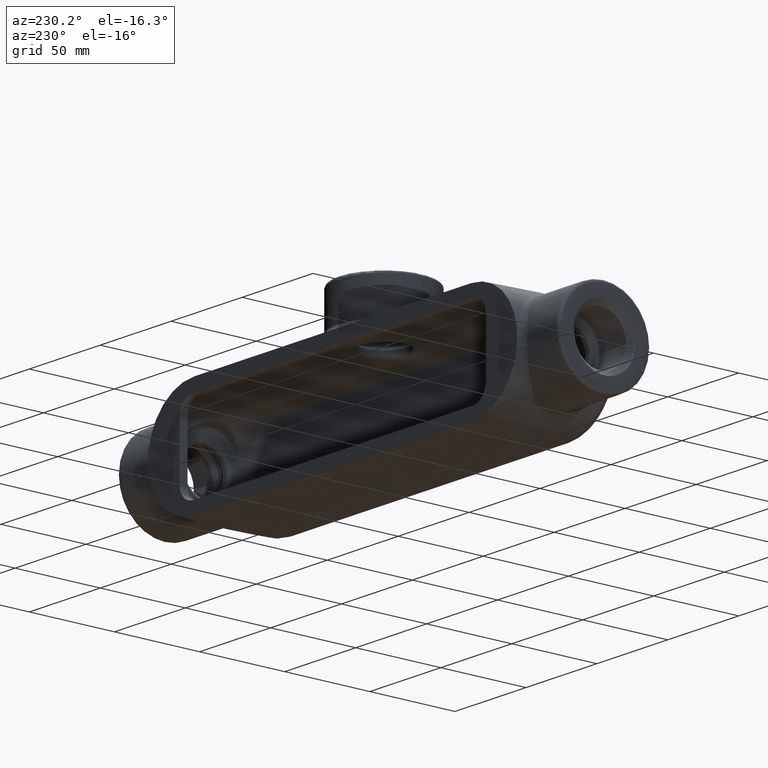
[diagram: clean part render]
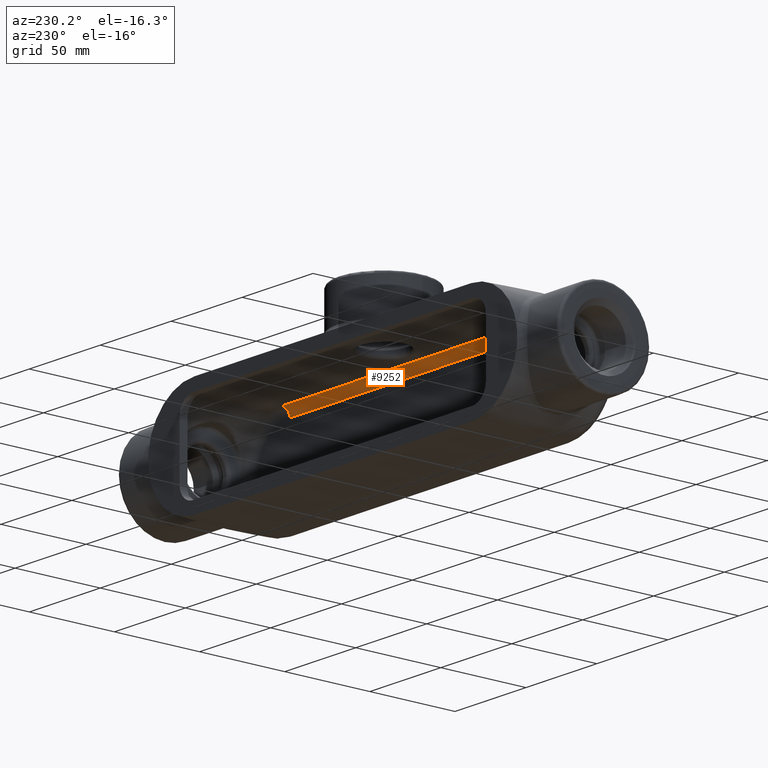
[diagram: same view with one face highlighted and labeled with its STEP entity id]
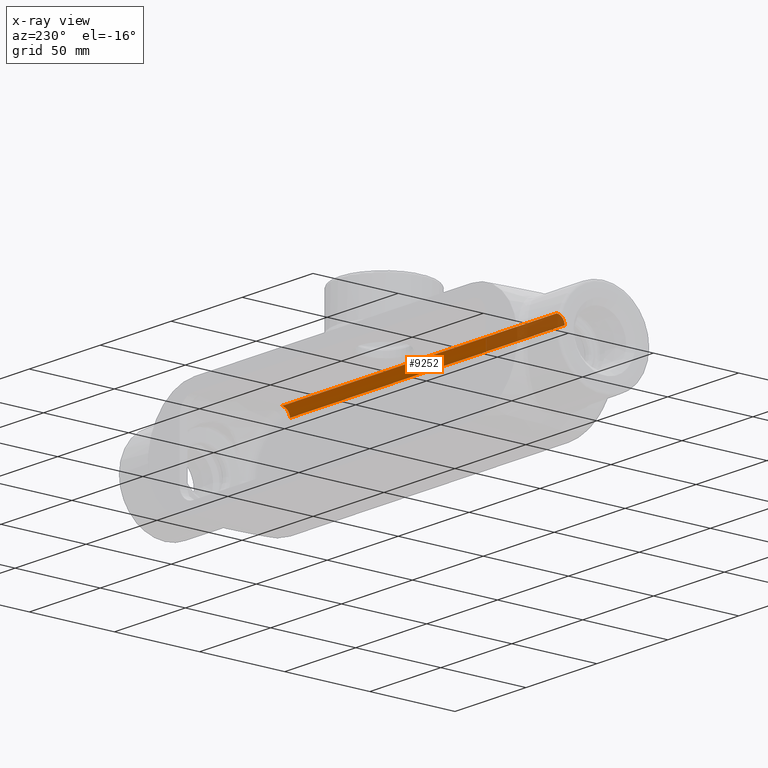
[diagram: x-ray of the same camera — body ghosted, the highlighted face saturated]
A machine part, auxiliary view. The second image highlights one B-rep face of the part: STEP entity #9252.
The next image is the same camera in x-ray: the body ghosted, the highlighted face saturated — about 28% of this face is hidden behind the body in this view.
In plain terms, the highlighted cylindrical surface (edge-blend (fillet) strip) has radius 4.7625 mm, axis along (1, 0, -0).
Its self-contained STEP definition (entity closure, byte-faithful):
#36=CYLINDRICAL_SURFACE('',#9797,0.1875);
#1197=FACE_OUTER_BOUND('',#1736,.T.);
#1736=EDGE_LOOP('',(#7105,#7106,#7107,#7108));
#2310=LINE('',#19237,#3044);
#2318=LINE('',#19758,#3052);
#3044=VECTOR('',#10729,0.393700787401575);
#3052=VECTOR('',#10797,0.393700787401575);
#3629=CIRCLE('',#9796,0.1875);
#3630=CIRCLE('',#9798,0.1875);
#4090=VERTEX_POINT('',#19233);
#4092=VERTEX_POINT('',#19236);
#4122=VERTEX_POINT('',#19752);
#4123=VERTEX_POINT('',#19756);
#5177=EDGE_CURVE('',#4092,#4090,#2310,.T.);
#5219=EDGE_CURVE('',#4122,#4090,#3629,.T.);
#5220=EDGE_CURVE('',#4123,#4092,#3630,.T.);
#5221=EDGE_CURVE('',#4122,#4123,#2318,.T.);
#7105=ORIENTED_EDGE('',*,*,#5220,.T.);
#7106=ORIENTED_EDGE('',*,*,#5177,.T.);
#7107=ORIENTED_EDGE('',*,*,#5219,.F.);
#7108=ORIENTED_EDGE('',*,*,#5221,.T.);
#9252=ADVANCED_FACE('',(#1197),#36,.F.);
#9796=AXIS2_PLACEMENT_3D('',#19754,#10791,#10792);
#9797=AXIS2_PLACEMENT_3D('',#19755,#10793,#10794);
#9798=AXIS2_PLACEMENT_3D('',#19757,#10795,#10796);
#10729=DIRECTION('',(-1.,0.,1.4164113141834E-16));
#10791=DIRECTION('center_axis',(1.,0.,0.));
#10792=DIRECTION('ref_axis',(0.,-0.0261769483078743,0.999657324975557));
#10793=DIRECTION('center_axis',(1.,0.,-1.4164113141834E-16));
#10794=DIRECTION('ref_axis',(0.,-0.716301943424654,0.69779045984168));
#10795=DIRECTION('center_axis',(1.,0.,0.));
#10796=DIRECTION('ref_axis',(0.,-0.0261769483078733,0.999657324975557));
#10797=DIRECTION('',(1.,0.,-1.4164113141834E-16));
#19233=CARTESIAN_POINT('',(-3.8125,-1.,0.916159665132998));
#19236=CARTESIAN_POINT('',(3.8125,-1.,0.916159665132997));
#19237=CARTESIAN_POINT('',(-2.46875,-1.,0.916159665132998));
#19752=CARTESIAN_POINT('',(-3.8125,-0.817408177807726,1.10359541356591));
#19754=CARTESIAN_POINT('Origin',(-3.8125,-0.812499999999999,0.916159665132998));
#19755=CARTESIAN_POINT('Origin',(-2.46875,-0.8125,0.916159665132998));
#19756=CARTESIAN_POINT('',(3.8125,-0.817408177807726,1.10359541356591));
#19757=CARTESIAN_POINT('Origin',(3.8125,-0.8125,0.916159665132997));
#19758=CARTESIAN_POINT('',(-2.46875,-0.817408177807726,1.10359541356591));